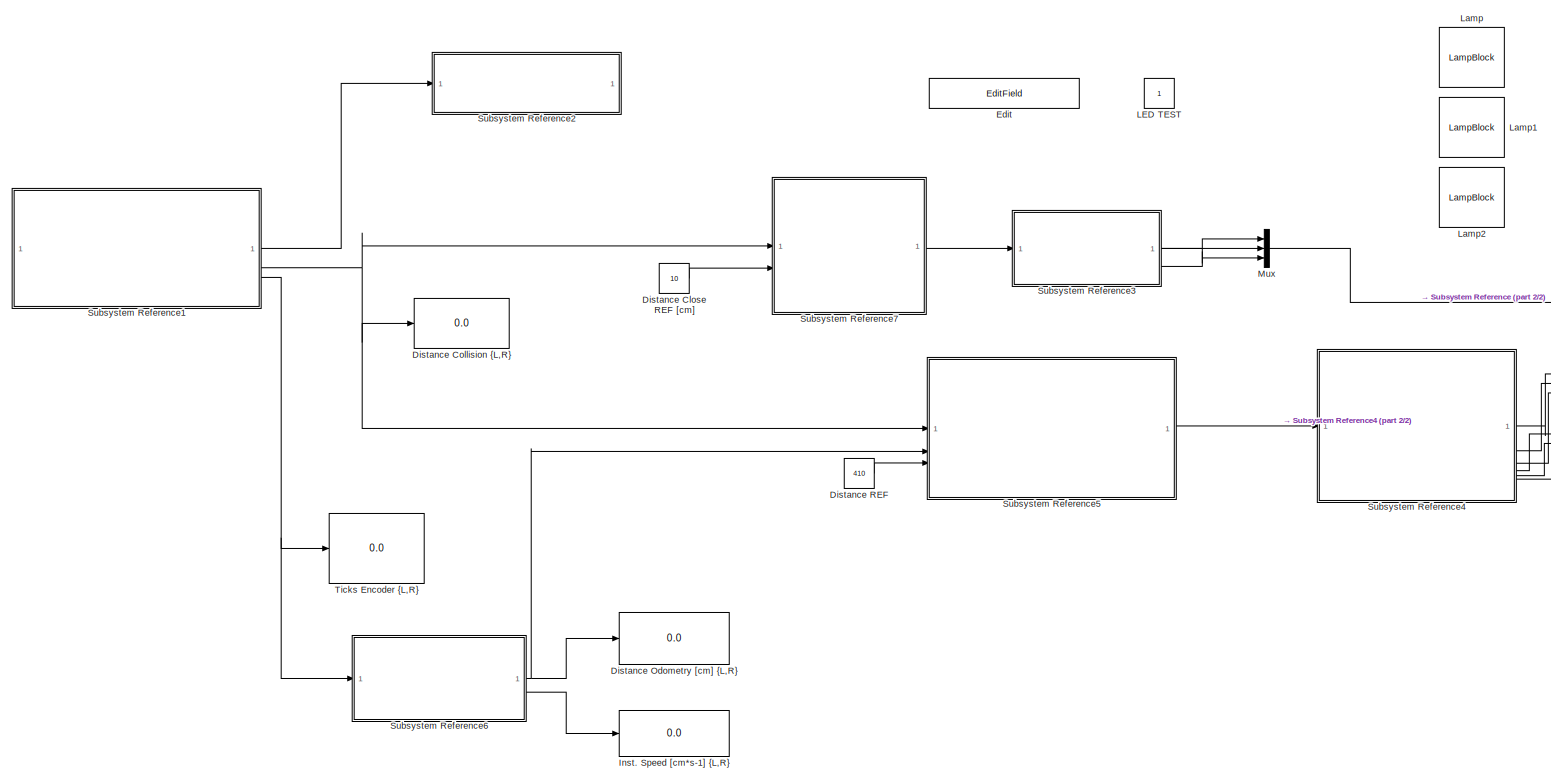
[diagram: root canvas - part 1/2, most of the canvas]
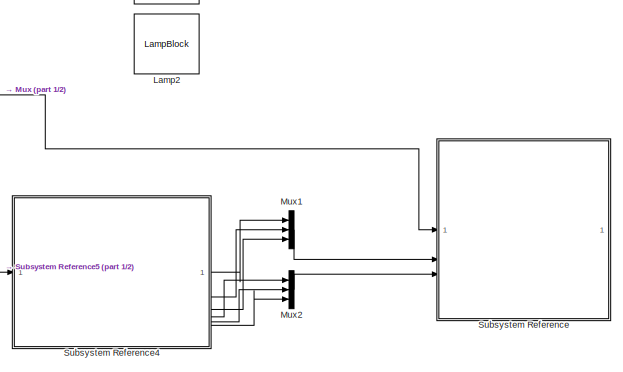
[diagram: root canvas - part 2/2, middle right region]
MODEL slx_1078a5fdf12e
KIND model
CONFIG AbsTol = auto
CONFIG EnableMultiTasking = on
CONFIG FixedStep = auto
CONFIG MaxStep = auto
CONFIG MinStep = auto
CONFIG RelTol = 1e-3
CONFIG SampleTimeConstraint = Unconstrained
CONFIG SolverName = FixedStepAuto
CONFIG StartTime = 0.0
CONFIG StopTime = inf
BLOCK [Constant] Distance Close REF [cm]
  OutDataTypeStr = int16
  Value = 10
BLOCK [Display] Distance Collision {L,R}
  Decimation = 1
BLOCK [Display] Distance Odometry [cm] {L,R}
  Decimation = 1
  Format = long
BLOCK [Constant] Distance REF
  OutDataTypeStr = int16
  Value = 410
BLOCK [EditField] Edit
  Alignment = Center
  LabelPosition = Hide
  ShowInitialText = on
BLOCK [Display] Inst. Speed [cm*s-1] {L,R}
  Decimation = 1
  Format = long
BLOCK [Constant] LED TEST
  NameLocation = left
  OutDataTypeStr = uint8
BLOCK [LampBlock] Lamp
  LabelPosition = Hide
BLOCK [LampBlock] Lamp1
  LabelPosition = Hide
BLOCK [LampBlock] Lamp2
  LabelPosition = Hide
BLOCK [Mux] Mux
  DisplayOption = bar
  Inputs = 3
BLOCK [Mux] Mux1
  DisplayOption = bar
  Inputs = 3
BLOCK [Mux] Mux2
  DisplayOption = bar
  Inputs = 3
BLOCK [SubSystem] Subsystem Reference
  ReferencedSubsystem = Outputs_MEGA
BLOCK [SubSystem] Subsystem Reference1
  ReferencedSubsystem = Inputs_MEGA
BLOCK [SubSystem] Subsystem Reference2
  ReferencedSubsystem = Batery_Bhv
BLOCK [SubSystem] Subsystem Reference3
  ReferencedSubsystem = Led_Ctrl
BLOCK [SubSystem] Subsystem Reference4
  ReferencedSubsystem = MotorCtrl
BLOCK [SubSystem] Subsystem Reference5
  ReferencedSubsystem = Motor_Cmd
BLOCK [SubSystem] Subsystem Reference6
  ReferencedSubsystem = Dist_Vel
BLOCK [SubSystem] Subsystem Reference7
  ReferencedSubsystem = Distance_LED_Bhv
BLOCK [Display] Ticks Encoder {L,R}
  Decimation = 1
  Format = long
LINE Distance Close REF [cm]:1 -> Subsystem Reference7:2
LINE Distance REF:1 -> Subsystem Reference5:3
LINE Mux1:1 -> Subsystem Reference:2
LINE Mux2:1 -> Subsystem Reference:3
LINE Mux:1 -> Subsystem Reference:1
LINE Subsystem Reference1:1 -> Subsystem Reference2:1
NET Subsystem Reference1:2 -> Distance Collision {L,R}:1, Subsystem Reference5:1, Subsystem Reference7:1
NET Subsystem Reference1:3 -> Subsystem Reference6:1, Ticks Encoder {L,R}:1
LINE Subsystem Reference3:1 -> Mux:1
LINE Subsystem Reference3:2 -> Mux:2
LINE Subsystem Reference3:3 -> Mux:3
LINE Subsystem Reference4:1 -> Mux1:1
LINE Subsystem Reference4:2 -> Mux1:2
LINE Subsystem Reference4:3 -> Mux1:3
LINE Subsystem Reference4:4 -> Mux2:1
LINE Subsystem Reference4:5 -> Mux2:2
LINE Subsystem Reference4:6 -> Mux2:3
LINE Subsystem Reference5:1 -> Subsystem Reference4:1
NET Subsystem Reference6:1 -> Distance Odometry [cm] {L,R}:1, Subsystem Reference5:2
LINE Subsystem Reference6:2 -> Inst. Speed [cm*s-1] {L,R}:1
LINE Subsystem Reference7:1 -> Subsystem Reference3:1
note: NET lines group one-source signal fan-out (src -> all destinations, sorted); 1:1 wires keep LINE
